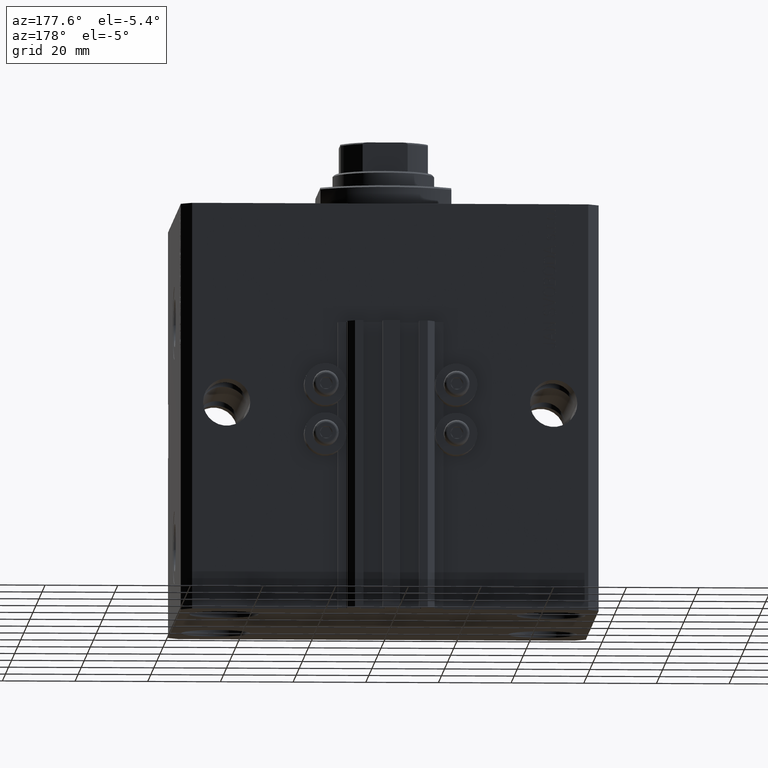
[diagram: clean part render]
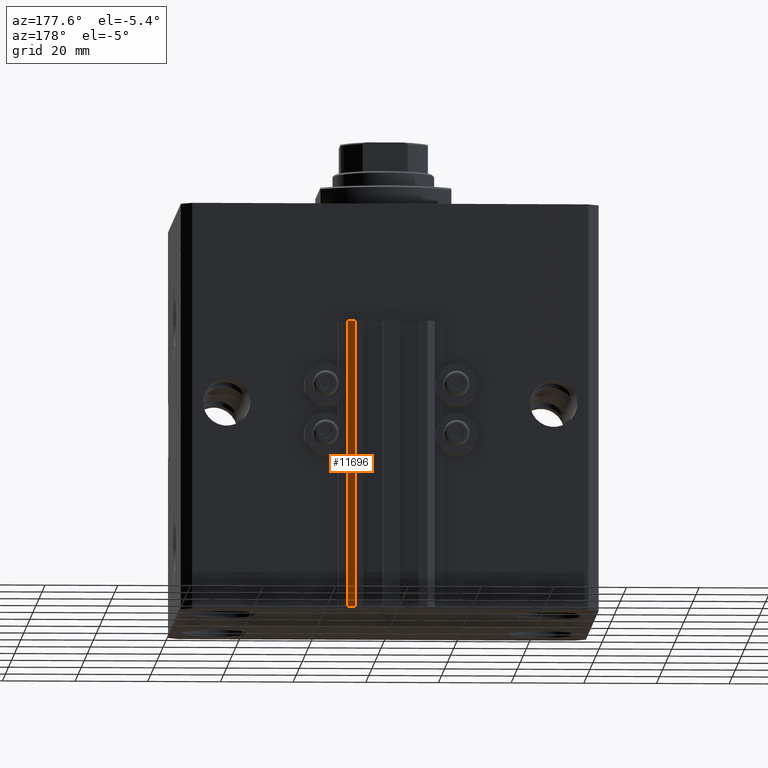
[diagram: same view with one face highlighted and labeled with its STEP entity id]
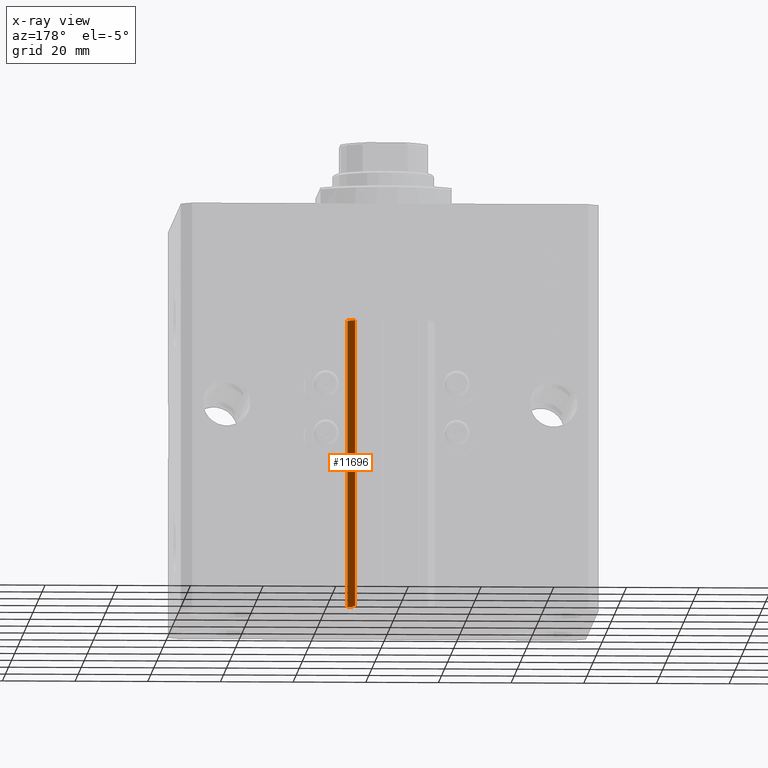
[diagram: x-ray of the same camera — body ghosted, the highlighted face saturated]
A machine part, auxiliary view. The second image highlights one B-rep face of the part: STEP entity #11696.
The next image is the same camera in x-ray: the body ghosted, the highlighted face saturated — about 0% of this face is hidden behind the body in this view.
In plain terms, the highlighted planar face has unit normal (0.7071, 0.7071, 0).
Its self-contained STEP definition (entity closure, byte-faithful):
#121 = VERTEX_POINT ( 'NONE', #15127 ) ;
#496 = LINE ( 'NONE', #23862, #27779 ) ;
#620 = FACE_OUTER_BOUND ( 'NONE', #37401, .T. ) ;
#1459 = DIRECTION ( 'NONE',  ( 0.000000000000000000, 0.000000000000000000, 1.000000000000000000 ) ) ;
#1608 = VECTOR ( 'NONE', #46251, 1000.000000000000114 ) ;
#1716 = VERTEX_POINT ( 'NONE', #25077 ) ;
#4277 = DIRECTION ( 'NONE',  ( -0.7071067811865474617, 0.7071067811865474617, 0.000000000000000000 ) ) ;
#4909 = CARTESIAN_POINT ( 'NONE',  ( 12.00000000000000000, 51.00000000000000711, -33.00000000000000000 ) ) ;
#10858 = EDGE_CURVE ( 'NONE', #1716, #23254, #44594, .T. ) ;
#10974 = EDGE_CURVE ( 'NONE', #23254, #27021, #38857, .T. ) ;
#11566 = CARTESIAN_POINT ( 'NONE',  ( 12.00000000000000000, 51.00000000000000711, -112.0000000000000000 ) ) ;
#11696 = ADVANCED_FACE ( 'NONE', ( #620 ), #34694, .T. ) ;
#13266 = DIRECTION ( 'NONE',  ( 0.000000000000000000, 0.000000000000000000, 1.000000000000000000 ) ) ;
#15127 = CARTESIAN_POINT ( 'NONE',  ( 9.999999999999998224, 53.00000000000000711, -112.0000000000000000 ) ) ;
#15785 = DIRECTION ( 'NONE',  ( 0.7071067811865475727, 0.7071067811865475727, -0.000000000000000000 ) ) ;
#19557 = CARTESIAN_POINT ( 'NONE',  ( 9.999999999999998224, 53.00000000000000711, -33.00000000000000000 ) ) ;
#20302 = EDGE_CURVE ( 'NONE', #1716, #121, #35047, .T. ) ;
#22213 = EDGE_CURVE ( 'NONE', #121, #27021, #496, .T. ) ;
#23254 = VERTEX_POINT ( 'NONE', #4909 ) ;
#23862 = CARTESIAN_POINT ( 'NONE',  ( 9.999999999999998224, 53.00000000000000711, -112.0000000000000000 ) ) ;
#24533 = VECTOR ( 'NONE', #4277, 1000.000000000000114 ) ;
#25077 = CARTESIAN_POINT ( 'NONE',  ( 12.00000000000000000, 51.00000000000000711, -112.0000000000000000 ) ) ;
#27021 = VERTEX_POINT ( 'NONE', #19557 ) ;
#27779 = VECTOR ( 'NONE', #1459, 1000.000000000000000 ) ;
#29006 = ORIENTED_EDGE ( 'NONE', *, *, #10858, .F. ) ;
#34052 = VECTOR ( 'NONE', #13266, 1000.000000000000000 ) ;
#34694 = PLANE ( 'NONE',  #46892 ) ;
#35047 = LINE ( 'NONE', #42269, #1608 ) ;
#37401 = EDGE_LOOP ( 'NONE', ( #41660, #29006, #43133, #38915 ) ) ;
#38197 = DIRECTION ( 'NONE',  ( -0.7071067811865474617, 0.7071067811865474617, 0.000000000000000000 ) ) ;
#38857 = LINE ( 'NONE', #46802, #24533 ) ;
#38915 = ORIENTED_EDGE ( 'NONE', *, *, #22213, .T. ) ;
#41660 = ORIENTED_EDGE ( 'NONE', *, *, #10974, .F. ) ;
#42269 = CARTESIAN_POINT ( 'NONE',  ( 12.00000000000000000, 51.00000000000000711, -112.0000000000000000 ) ) ;
#43133 = ORIENTED_EDGE ( 'NONE', *, *, #20302, .T. ) ;
#44110 = CARTESIAN_POINT ( 'NONE',  ( 12.00000000000000000, 51.00000000000000711, -112.0000000000000000 ) ) ;
#44594 = LINE ( 'NONE', #44110, #34052 ) ;
#46251 = DIRECTION ( 'NONE',  ( -0.7071067811865474617, 0.7071067811865474617, 0.000000000000000000 ) ) ;
#46802 = CARTESIAN_POINT ( 'NONE',  ( 12.00000000000000000, 51.00000000000000711, -33.00000000000000000 ) ) ;
#46892 = AXIS2_PLACEMENT_3D ( 'NONE', #11566, #15785, #38197 ) ;